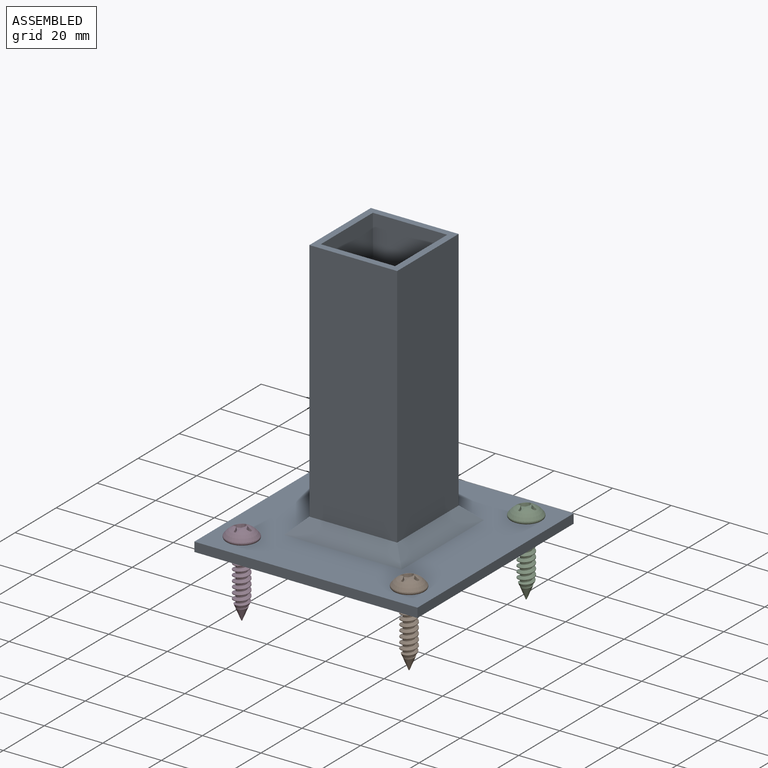
[diagram: assembled view]
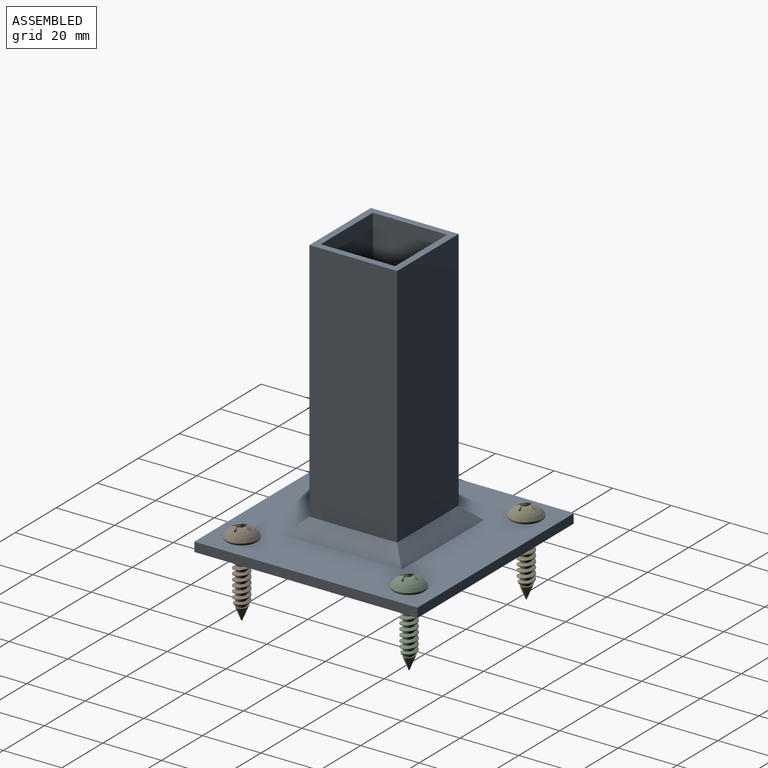
[diagram: assembled view, second angle]
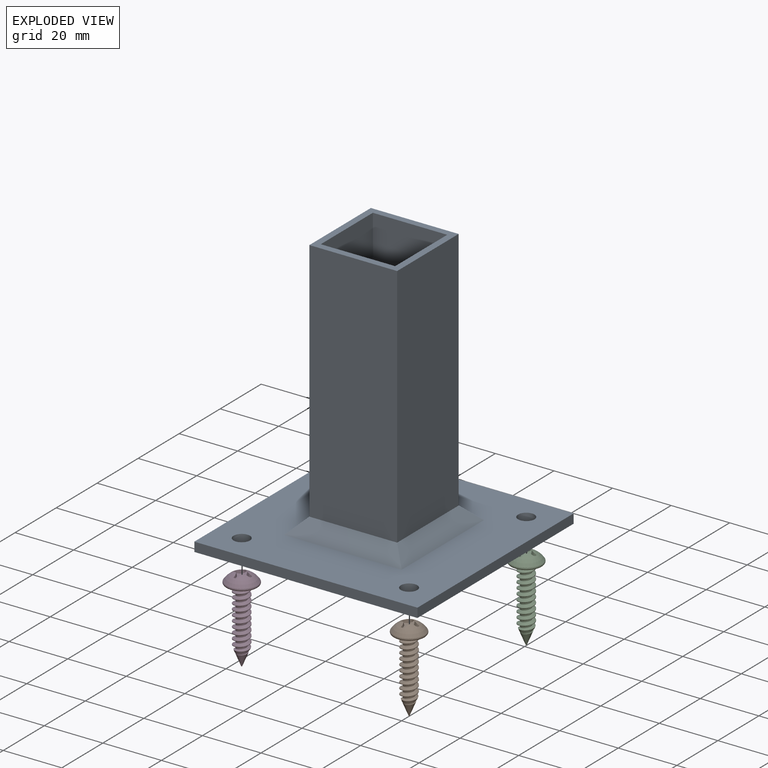
[diagram: exploded view]
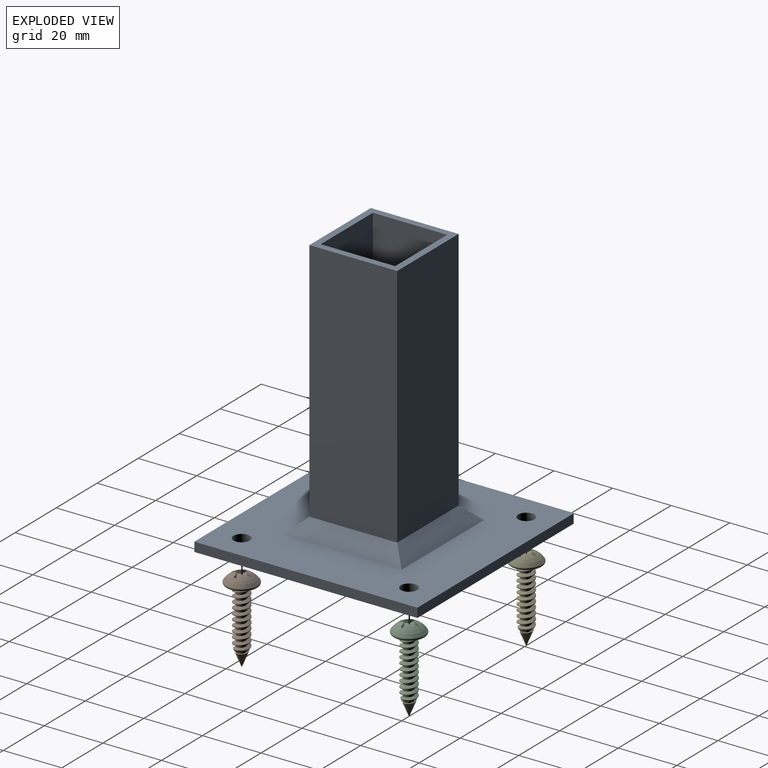
[diagram: exploded view, second angle]
ASSEMBLY  parts=5 mates=4
PART A: 24 faces, bbox 76.2x76.2x92.1 mm
  f0: plane 76.2x76.2mm, normal (0,0,1), area 4097.8mm2, adj f1,f2,f3,f4,f16,f17,f18,f19
  f1: plane 76.2x3.18mm, normal (0,1,0), area 241.9mm2, adj f0,f2,f4,f5
  f2: plane 76.2x3.18mm, normal (-1,0,0), area 241.9mm2, adj f0,f1,f3,f5
  f3: plane 76.2x3.18mm, normal (0,-1,0), area 241.9mm2, adj f0,f2,f4,f5
  f4: plane 76.2x3.18mm, normal (1,0,0), area 241.9mm2, adj f0,f1,f3,f5
  f5: plane 76.2x76.2mm, normal (0,0,-1), area 5708.3mm2, adj f1,f2,f3,f4,f20,f21,f22,f23
  f6: plane 88.9x25.4mm, normal (0,1,0), area 2258.1mm2, adj f7,f13,f14,f15
  f7: plane 88.9x25.4mm, normal (1,0,0), area 2258.1mm2, adj f6,f8,f14,f15
  f8: plane 88.9x25.4mm, normal (0,-1,0), area 2258.1mm2, adj f7,f13,f14,f15
  f9: plane 83.82x29.97mm, normal (1,0,0), area 2512.3mm2, adj f10,f12,f14,f16
  f10: plane 83.82x29.97mm, normal (0,1,0), area 2512.3mm2, adj f9,f11,f14,f17
  f11: plane 83.82x29.97mm, normal (-1,0,0), area 2512.3mm2, adj f10,f12,f14,f19
  f12: plane 83.82x29.97mm, normal (0,-1,0), area 2512.3mm2, adj f9,f11,f14,f18
  f13: plane 88.9x25.4mm, normal (-1,0,0), area 2258.1mm2, adj f6,f8,f14,f15
  f14: plane 29.97x29.97mm, normal (0,0,1), area 253.2mm2, adj f6,f7,f8,f9,f10,f11,f12,f13
  f15: plane 25.4x25.4mm, normal (0,0,1), area 645.2mm2, adj f6,f7,f8,f13
  f16: plane 40.13x5.08mm, normal (0.71,0,0.71), area 251.8mm2, adj f0,f9,f17,f18
  f17: plane 40.13x5.08mm, normal (0,0.71,0.71), area 251.8mm2, adj f0,f10,f16,f19
  f18: plane 40.13x5.08mm, normal (0,-0.71,0.71), area 251.8mm2, adj f0,f12,f16,f19
  f19: plane 40.13x5.08mm, normal (-0.71,0,0.71), area 251.8mm2, adj f0,f11,f17,f18
  f20: cylinder r=2.79mm len=5.59mm, axis (0,0,-1), area 55.7mm2, adj f0,f5
  f21: cylinder r=2.79mm len=5.59mm, axis (0,0,-1), area 55.7mm2, adj f0,f5
  f22: cylinder r=2.79mm len=5.59mm, axis (0,0,-1), area 55.7mm2, adj f0,f5
  f23: cylinder r=2.79mm len=5.59mm, axis (0,0,-1), area 55.7mm2, adj f0,f5
PART B: 54 faces, bbox 12.2x12.2x29.5 mm
  f0: cylinder r=1.76mm len=21.45mm, axis (0,0,-1), area 59.4mm2, adj f2,f3,f4,f5,f6,f7,f10,f11
  f1: cylinder r=2.74mm len=19.08mm, axis (0,0,-1), area 41.1mm2, adj f2,f3,f7,f10,f11,f12,f13,f14
  f2: bspline ~6.34x5.49mm, area 12.1mm2, adj f0,f1,f4,f28,f30,f31
  f3: bspline ~6.34x5.49mm, area 14.4mm2, adj f0,f1,f5,f29,f30,f31
  f4: bspline ~5.54x4.11mm, area 0.7mm2, adj f0,f2,f31
  f5: bspline ~6.34x5.49mm, area 5.1mm2, adj f0,f3,f6,f31
  f6: bspline ~4.75x1.86mm, area 0mm2, adj f0,f5,f31
  f7: plane 10.04x10.04mm, normal (0,0,-1), area 56.2mm2, adj f0,f1,f8,f12,f13
  f8: torus R=4.78mm, axis (0,0,-1), area 43.7mm2, adj f7,f9
  f9: sphere r=6.32mm, area 95.4mm2, adj f8,f33,f34,f35,f36,f37,f38,f40
  f10: bspline ~6.34x5.49mm, area 24.2mm2, adj f0,f1,f12,f14
  f11: bspline ~6.34x5.49mm, area 24.2mm2, adj f0,f1,f13,f15
  f12: bspline ~6.34x5.49mm, area 13.5mm2, adj f0,f1,f7,f10
  f13: bspline ~5.54x5.49mm, area 6.8mm2, adj f0,f1,f7,f11
  f14: bspline ~6.34x5.49mm, area 16.1mm2, adj f0,f1,f10,f16
  f15: bspline ~6.34x5.49mm, area 16.1mm2, adj f0,f1,f11,f17
  f16: bspline ~6.34x5.49mm, area 16.1mm2, adj f0,f1,f14,f18
  f17: bspline ~6.34x5.49mm, area 16.1mm2, adj f0,f1,f15,f19
  f18: bspline ~6.34x5.49mm, area 16.1mm2, adj f0,f1,f16,f20
  f19: bspline ~6.34x5.49mm, area 16.1mm2, adj f0,f1,f17,f21
  f20: bspline ~6.34x5.49mm, area 16.1mm2, adj f0,f1,f18,f22
  f21: bspline ~6.34x5.49mm, area 16.1mm2, adj f0,f1,f19,f23
  f22: bspline ~6.34x5.49mm, area 16.1mm2, adj f0,f1,f20,f24
  f23: bspline ~6.34x5.49mm, area 16.1mm2, adj f0,f1,f21,f25
  f24: bspline ~6.34x5.49mm, area 16.1mm2, adj f0,f1,f22,f26
  f25: bspline ~6.34x5.49mm, area 16.1mm2, adj f0,f1,f23,f27
  f26: bspline ~6.34x5.49mm, area 16.1mm2, adj f0,f1,f24,f28
  f27: bspline ~6.34x5.49mm, area 16.1mm2, adj f0,f1,f25,f29
  f28: bspline ~6.34x5.49mm, area 16.1mm2, adj f0,f1,f2,f26
  f29: bspline ~6.34x5.49mm, area 16.1mm2, adj f0,f1,f3,f27
  f30: cone r=2.74mm half-angle=22.5deg, axis (0,0,1), area 2.5mm2, adj f1,f2,f3,f31
  f31: cone r=2.74mm half-angle=22.5deg, axis (0,0,1), area 37.8mm2, adj f0,f2,f3,f4,f5,f6,f30,f32
  f32: plane 0.25x0.25mm, normal (0,0,-1), area 0.1mm2, adj f31
  f33: cone r=3.6mm half-angle=25deg, axis (0,0,1), area 0.5mm2, adj f9,f34,f39,f44
  f34: plane 1.12x0.94mm, normal (-0.98,0,0.17), area 0.7mm2, adj f9,f33,f35,f39
  f35: plane 1.34x1.27mm, normal (-0.91,-0.38,0.17), area 1.2mm2, adj f9,f34,f36,f39
  f36: plane 1.34x1.27mm, normal (-0.38,-0.91,0.17), area 1.2mm2, adj f9,f35,f37,f39
  f37: plane 1.12x0.94mm, normal (0,-0.98,0.17), area 0.7mm2, adj f9,f36,f38,f39
  f38: cone r=3.6mm half-angle=25deg, axis (0,0,1), area 0.5mm2, adj f9,f37,f39,f50
  f39: plane 6x6mm, normal (0,0,1), area 13.8mm2, adj f33,f34,f35,f36,f37,f38,f40,f41
  f40: cone r=3.6mm half-angle=25deg, axis (0,0,1), area 0.5mm2, adj f9,f39,f41,f49
  f41: plane 1.12x0.94mm, normal (0,-0.98,0.17), area 0.7mm2, adj f9,f39,f40,f42
  f42: plane 1.34x1.27mm, normal (0.38,-0.91,0.17), area 1.2mm2, adj f9,f39,f41,f43
  f43: plane 1.34x1.27mm, normal (0.91,-0.38,0.17), area 1.2mm2, adj f9,f39,f42,f44
  f44: plane 1.12x0.94mm, normal (0.98,0,0.17), area 0.7mm2, adj f9,f33,f39,f43
  f45: cone r=3.6mm half-angle=25deg, axis (0,0,1), area 0.5mm2, adj f9,f39,f46,f53
  f46: plane 1.12x0.94mm, normal (0.98,0,0.17), area 0.7mm2, adj f9,f39,f45,f47
  f47: plane 1.34x1.27mm, normal (0.91,0.38,0.17), area 1.2mm2, adj f9,f39,f46,f48
  f48: plane 1.34x1.27mm, normal (0.38,0.91,0.17), area 1.2mm2, adj f9,f39,f47,f49
  f49: plane 1.12x0.94mm, normal (0,0.98,0.17), area 0.7mm2, adj f9,f39,f40,f48
  f50: plane 1.12x0.94mm, normal (0,0.98,0.17), area 0.7mm2, adj f9,f38,f39,f51
  f51: plane 1.34x1.27mm, normal (-0.38,0.91,0.17), area 1.2mm2, adj f9,f39,f50,f52
  f52: plane 1.34x1.27mm, normal (-0.91,0.38,0.17), area 1.2mm2, adj f9,f39,f51,f53
  f53: plane 1.12x0.94mm, normal (-0.98,0,0.17), area 0.7mm2, adj f9,f39,f45,f52
PART C: same geometry as B
PART D: same geometry as B
PART E: same geometry as B
PLACE A at identity
PLACE B t=(28.58,-28.57,3.18)mm
PLACE C t=(28.58,28.58,3.18)mm
PLACE D t=(-28.58,-28.57,3.18)mm
PLACE E t=(-28.57,28.58,3.18)mm
MATE fastened D.f0 <-> A.f22  axis (0,0,-1) through (-28.58,-28.57,3.18)mm
MATE fastened B.f0 <-> A.f23  axis (0,0,-1) through (28.58,-28.57,3.18)mm
MATE fastened C.f0 <-> A.f21  axis (0,0,-1) through (28.58,28.58,3.18)mm
MATE fastened E.f0 <-> A.f20  axis (0,0,-1) through (-28.57,28.58,3.18)mm
